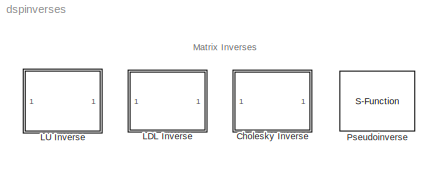
MODEL dspinverses
KIND library
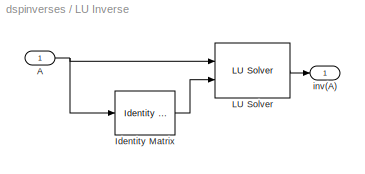
BLOCK [SubSystem]  LU Inverse
  MaskDescription = Matrix inverse using LU factorization.
  MaskDisplay = text(0.25,0.85,'General')\ntext(0.25,0.70,'Inverse')\ntext(0.35,0.25,'(LU)')
  MaskHelp = web(dspbhelp);
  MaskIconFrame = on
  MaskIconOpaque = on
  MaskIconRotate = none
  MaskIconUnits = normalized
  MaskType = LU Inverse
  Ports = [1, 1]
  TreatAsAtomicUnit = off
BLOCK [Inport]  LU Inverse/A
  IconDisplay = Port number
BLOCK [Reference]  LU Inverse/Identity Matrix  REF=dspmtrx3/Identity Matrix
  Inherit = on
  N = 5
  Ports = [1, 1]
  SourceBlock = dspmtrx3/Identity Matrix
  SourceType = Identity Matrix
  Ts = 1
  additionalParams = off
  allowOverrides = on
  dataType = double
  fracBitsMode = Best precision
  numFracBits = 15
  udDataType = sfix(16)
  wordLen = 16
BLOCK [Reference]  LU Inverse/LU Solver  REF=dspsolvers/LU Solver
  Ports = [2, 1]
  ShowPortLabels = on
  SourceBlock = dspsolvers/LU Solver
  SourceType = LU Solver
BLOCK [Outport]  LU Inverse/inv(A)
  IconDisplay = Port number
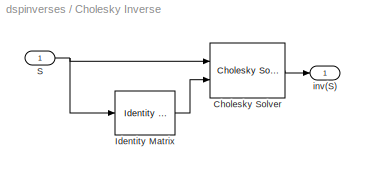
BLOCK [SubSystem] Cholesky Inverse
  MaskDescription = Matrix inverse using Cholesky factorization.
  MaskDisplay = text(0.05,0.85,'Sym. Pos. Def.')\ntext(0.25,0.70,'Inverse')\ntext(0.35,0.25,'(Chol)')
  MaskEnableString = on
  MaskHelp = web(dspbhelp);
  MaskIconFrame = on
  MaskIconOpaque = on
  MaskIconRotate = none
  MaskIconUnits = normalized
  MaskInitialization = set_param([gcb '/Cholesky Solver'],'MaskTunableValues',{'off'});\nset_param([gcb '/Cholesky Solver'],'errmode',get_param(gcb,'errmode'));\n
  MaskPromptString = Non-positive definite input:
  MaskSelfModifiable = on
  MaskStyleString = popup(Ignore|Warning|Error)
  MaskToolTipString = on
  MaskTunableValueString = off
  MaskType = Cholesky Inverse
  MaskValueString = Warning
  MaskVariables = errmode=&1;
  MaskVisibilityString = on
  Ports = [1, 1]
  TreatAsAtomicUnit = off
BLOCK [Reference] Cholesky Inverse/Cholesky Solver  REF=dspsolvers/Cholesky Solver
  Ports = [2, 1]
  ShowPortLabels = on
  SourceBlock = dspsolvers/Cholesky Solver
  SourceType = Cholesky Solver
  errmode = Warning
BLOCK [Reference] Cholesky Inverse/Identity Matrix  REF=dspmtrx3/Identity Matrix
  Inherit = on
  N = 5
  Ports = [1, 1]
  SourceBlock = dspmtrx3/Identity Matrix
  SourceType = Identity Matrix
  Ts = 1
  additionalParams = off
  allowOverrides = on
  dataType = double
  fracBitsMode = Best precision
  numFracBits = 15
  udDataType = sfix(16)
  wordLen = 16
BLOCK [Inport] Cholesky Inverse/S
  IconDisplay = Port number
BLOCK [Outport] Cholesky Inverse/inv(S)
  IconDisplay = Port number
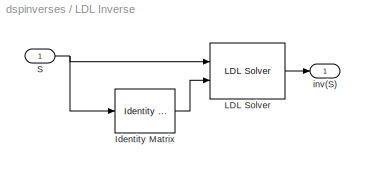
BLOCK [SubSystem] LDL Inverse
  MaskDescription = Matrix inverse using LDL factorization.
  MaskDisplay = text(0.05,0.85,'Sym. Pos. Def.')\ntext(0.25,0.70,'Inverse')\ntext(0.35,0.25,'(LDL)')
  MaskEnableString = on
  MaskHelp = web(dspbhelp);
  MaskIconFrame = on
  MaskIconOpaque = on
  MaskIconRotate = none
  MaskIconUnits = normalized
  MaskInitialization = set_param([gcb '/LDL Solver'],'MaskTunableValues',{'off'});\nset_param([gcb '/LDL Solver'],'errmode',get_param(gcb,'errmode'));\n
  MaskPromptString = Non-positive definite input:
  MaskSelfModifiable = on
  MaskStyleString = popup(Ignore|Warning|Error)
  MaskToolTipString = on
  MaskTunableValueString = off
  MaskType = LDL Inverse
  MaskValueString = Warning
  MaskVariables = errmode=&1;
  MaskVisibilityString = on
  Ports = [1, 1]
  TreatAsAtomicUnit = off
BLOCK [Reference] LDL Inverse/Identity Matrix  REF=dspmtrx3/Identity Matrix
  Inherit = on
  N = 5
  Ports = [1, 1]
  SourceBlock = dspmtrx3/Identity Matrix
  SourceType = Identity Matrix
  Ts = 1
  additionalParams = off
  allowOverrides = on
  dataType = double
  fracBitsMode = Best precision
  numFracBits = 15
  udDataType = sfix(16)
  wordLen = 16
BLOCK [Reference] LDL Inverse/LDL Solver  REF=dspsolvers/LDL Solver
  Ports = [2, 1]
  ShowPortLabels = on
  SourceBlock = dspsolvers/LDL Solver
  SourceType = LDL Solver
  errmode = Warning
BLOCK [Inport] LDL Inverse/S
  IconDisplay = Port number
BLOCK [Outport] LDL Inverse/inv(S)
  IconDisplay = Port number
BLOCK [S-Function] Pseudoinverse
  FunctionName = sdsppinv
  MaskDescription = X is the Moore-Penrose Pseudoinverse and satisfies 4 criteria:\nX*A*X=X, A*X*A=A, and A*X and X*A are Hermitian.
  MaskDisplay = text(0.07,0.75,'Pseudoinverse')\ntext(0.35,0.25,'(SVD)')\n
  MaskHelp = web(dspbhelp);
  MaskIconFrame = on
  MaskIconOpaque = on
  MaskIconRotate = none
  MaskIconUnits = normalized
  MaskInitialization = s = dspblkpinv;\n\n% put the following lines in the icon drawing commands box\n% to get port labels (A on input, A+ on output)\n\n% port_label('input',s.i1,s.i1s);\n% port_label('output',s.o1,s.o1s);
  MaskType = Pseudoinverse
  Ports = [1, 1]
ANNOTATION (root): Matrix Inverses
NET  LU Inverse/A:1 ->  LU Inverse/Identity Matrix:1,  LU Inverse/LU Solver:1
LINE  LU Inverse/Identity Matrix:1 ->  LU Inverse/LU Solver:2
LINE  LU Inverse/LU Solver:1 ->  LU Inverse/inv(A):1
LINE Cholesky Inverse/Cholesky Solver:1 -> Cholesky Inverse/inv(S):1
LINE Cholesky Inverse/Identity Matrix:1 -> Cholesky Inverse/Cholesky Solver:2
NET Cholesky Inverse/S:1 -> Cholesky Inverse/Cholesky Solver:1, Cholesky Inverse/Identity Matrix:1
LINE LDL Inverse/Identity Matrix:1 -> LDL Inverse/LDL Solver:2
LINE LDL Inverse/LDL Solver:1 -> LDL Inverse/inv(S):1
NET LDL Inverse/S:1 -> LDL Inverse/Identity Matrix:1, LDL Inverse/LDL Solver:1
note: NET lines group one-source signal fan-out (src -> all destinations, sorted); 1:1 wires keep LINE
